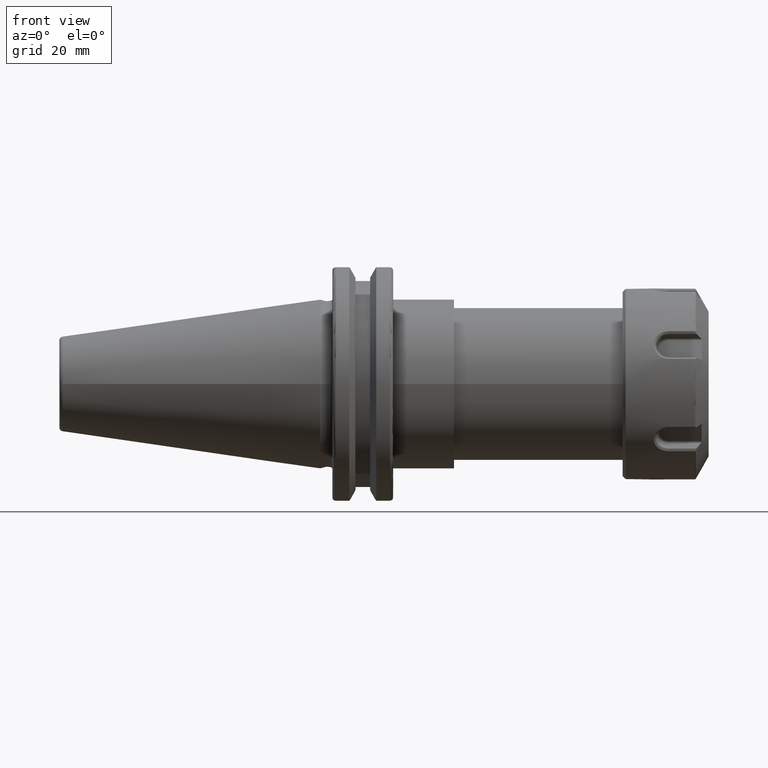
[diagram: clean part render]
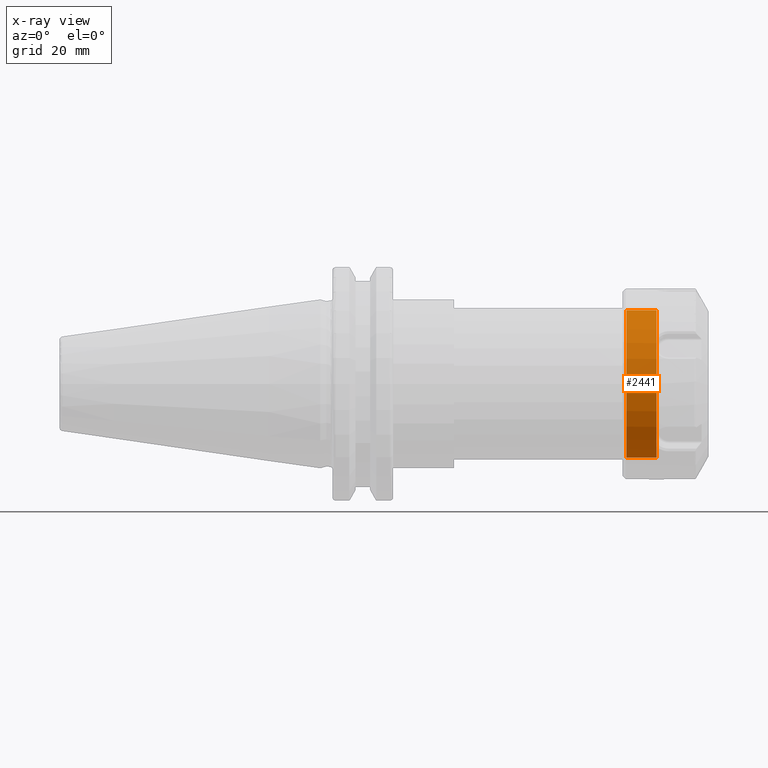
[diagram: x-ray — body ghosted, one internal face saturated and labeled with its STEP entity id]
A machine part, front view, then the same camera in x-ray: the body is ghosted and one INTERNAL B-rep face — a face not visible from any outside direction — is saturated and labeled: STEP entity #2441.
In plain terms, the highlighted cylindrical surface (bore or boss wall) has radius 19.3 mm, axis along (1, -0, 0).
Its self-contained STEP definition (entity closure, byte-faithful):
#327=CYLINDRICAL_SURFACE('',#2714,19.3);
#408=FACE_OUTER_BOUND('',#561,.T.);
#561=EDGE_LOOP('',(#1956,#1957,#1958,#1959,#1960));
#717=LINE('',#3948,#871);
#871=VECTOR('',#3155,19.3);
#1005=CIRCLE('',#2712,19.3);
#1006=CIRCLE('',#2713,19.3);
#1007=CIRCLE('',#2715,19.3);
#1161=VERTEX_POINT('',#3941);
#1162=VERTEX_POINT('',#3943);
#1163=VERTEX_POINT('',#3947);
#1442=EDGE_CURVE('',#1161,#1162,#1005,.T.);
#1443=EDGE_CURVE('',#1162,#1161,#1006,.T.);
#1444=EDGE_CURVE('',#1162,#1163,#717,.T.);
#1445=EDGE_CURVE('',#1163,#1163,#1007,.T.);
#1956=ORIENTED_EDGE('',*,*,#1442,.F.);
#1957=ORIENTED_EDGE('',*,*,#1443,.F.);
#1958=ORIENTED_EDGE('',*,*,#1444,.T.);
#1959=ORIENTED_EDGE('',*,*,#1445,.F.);
#1960=ORIENTED_EDGE('',*,*,#1444,.F.);
#2441=ADVANCED_FACE('',(#408),#327,.F.);
#2712=AXIS2_PLACEMENT_3D('',#3944,#3149,#3150);
#2713=AXIS2_PLACEMENT_3D('',#3945,#3151,#3152);
#2714=AXIS2_PLACEMENT_3D('',#3946,#3153,#3154);
#2715=AXIS2_PLACEMENT_3D('',#3949,#3156,#3157);
#3149=DIRECTION('center_axis',(1.,0.,0.));
#3150=DIRECTION('ref_axis',(0.,1.,0.));
#3151=DIRECTION('center_axis',(1.,0.,0.));
#3152=DIRECTION('ref_axis',(0.,1.,0.));
#3153=DIRECTION('center_axis',(1.,0.,0.));
#3154=DIRECTION('ref_axis',(0.,-1.,0.));
#3155=DIRECTION('',(1.,0.,0.));
#3156=DIRECTION('center_axis',(-1.,0.,0.));
#3157=DIRECTION('ref_axis',(0.,1.,0.));
#3941=CARTESIAN_POINT('',(-10.25,-19.2996618297511,0.114250852292867));
#3943=CARTESIAN_POINT('',(-10.25,19.3,2.36356832235439E-15));
#3944=CARTESIAN_POINT('Origin',(-10.25,0.,0.));
#3945=CARTESIAN_POINT('Origin',(-10.25,0.,0.));
#3946=CARTESIAN_POINT('Origin',(0.,0.,0.));
#3947=CARTESIAN_POINT('',(-2.39544826719,19.3,0.));
#3948=CARTESIAN_POINT('',(0.,19.3,2.36356832235439E-15));
#3949=CARTESIAN_POINT('Origin',(-2.39544826719,0.,0.));